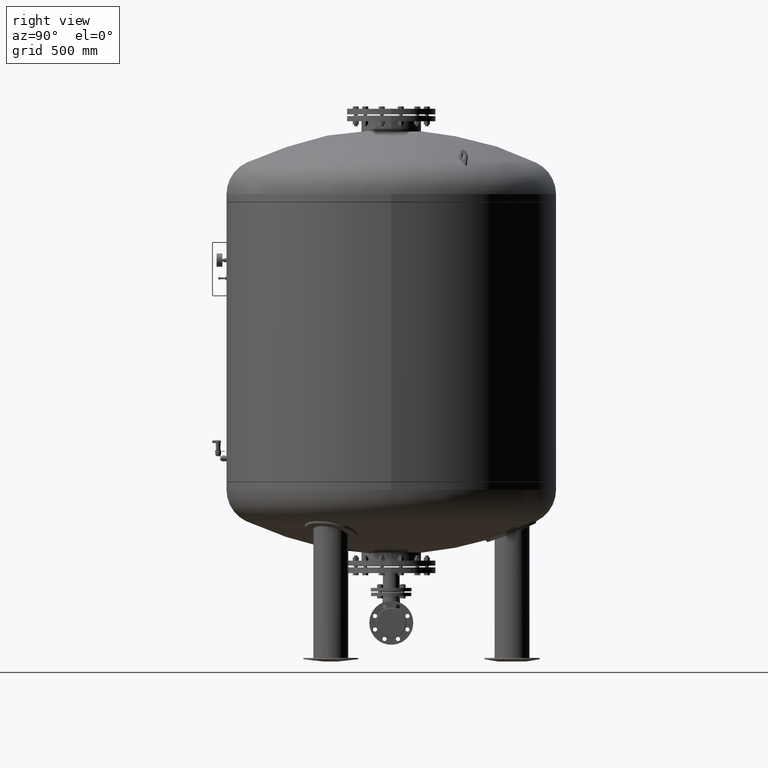
[diagram: clean part render]
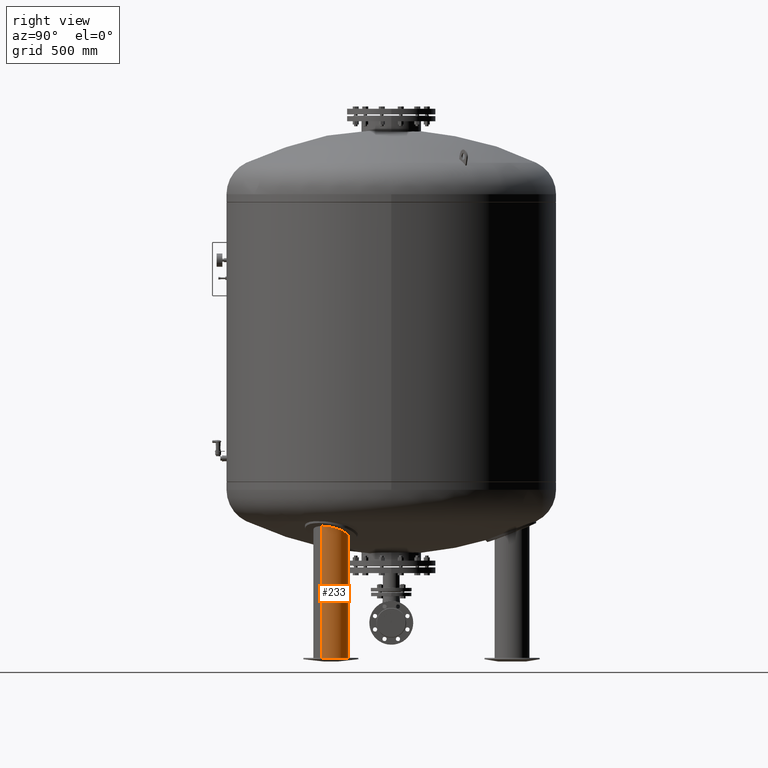
[diagram: same view with one face highlighted and labeled with its STEP entity id]
A machine part, right view. The second image highlights one B-rep face of the part: STEP entity #233.
In plain terms, the highlighted cylindrical surface (edge-blend (fillet) strip) has radius 79.5 mm, axis along (0, 0, -1).
Its self-contained STEP definition (entity closure, byte-faithful):
#167=CARTESIAN_POINT('',(476.313972081441020,-275.000000000000170,15.815585141290533));
#168=DIRECTION('',(9.184851E-017,1.590863E-016,-1.0));
#169=DIRECTION('',(0.866025403784438,-0.500000000000000,0.0));
#170=AXIS2_PLACEMENT_3D('',#167,#168,#169);
#171=CYLINDRICAL_SURFACE('',#170,79.500000000000000);
#172=CARTESIAN_POINT('',(545.162991682303870,-314.750000000000230,11.631170282581067));
#173=VERTEX_POINT('',#172);
#174=CARTESIAN_POINT('',(545.162991682304440,-314.750000000000630,619.974328976416250));
#175=VERTEX_POINT('',#174);
#176=CARTESIAN_POINT('',(545.162991682303870,-314.750000000000230,11.631170282581067));
#177=DIRECTION('',(0.0,0.0,1.0));
#178=VECTOR('',#177,608.343158693835220);
#179=LINE('',#176,#178);
#180=EDGE_CURVE('',#173,#175,#179,.T.);
#181=ORIENTED_EDGE('',*,*,#180,.F.);
#182=CARTESIAN_POINT('',(407.464952480578180,-235.250000000000110,11.631170282581067));
#183=VERTEX_POINT('',#182);
#184=CARTESIAN_POINT('',(476.313972081441020,-275.000000000000170,11.631170282581067));
#185=DIRECTION('',(0.0,0.0,-1.000000000000000));
#186=DIRECTION('',(0.866025403784438,-0.500000000000000,0.0));
#187=AXIS2_PLACEMENT_3D('',#184,#185,#186);
#188=CIRCLE('',#187,79.499999999999986);
#189=EDGE_CURVE('',#183,#173,#188,.T.);
#190=ORIENTED_EDGE('',*,*,#189,.F.);
#191=CARTESIAN_POINT('',(407.464952480578120,-235.250000000000230,557.801446445446690));
#192=VERTEX_POINT('',#191);
#193=CARTESIAN_POINT('',(407.464952480578180,-235.250000000000110,11.631170282581067));
#194=DIRECTION('',(0.0,0.0,1.0));
#195=VECTOR('',#194,546.170276162865660);
#196=LINE('',#193,#195);
#197=EDGE_CURVE('',#183,#192,#196,.T.);
#198=ORIENTED_EDGE('',*,*,#197,.T.);
#199=CARTESIAN_POINT('',(515.420540091885870,-205.783482184926360,588.259208461118310));
#200=VERTEX_POINT('',#199);
#201=CARTESIAN_POINT('',(407.464952480578120,-235.250000000000230,557.801446445446690));
#202=CARTESIAN_POINT('',(411.525284235390980,-228.217299105079010,557.801446445446690));
#203=CARTESIAN_POINT('',(416.633408486805020,-221.858280027431870,558.277369662588170));
#204=CARTESIAN_POINT('',(429.761674803730900,-209.827814395284580,560.328261777430270));
#205=CARTESIAN_POINT('',(437.984686074917250,-204.702974823101670,562.075596332598020));
#206=CARTESIAN_POINT('',(456.175474625067640,-197.436185727423090,566.734659420112730));
#207=CARTESIAN_POINT('',(466.033210859583850,-195.556981402014230,569.661195647944850));
#208=CARTESIAN_POINT('',(486.479592551512550,-195.441118239628850,576.486089468713540));
#209=CARTESIAN_POINT('',(496.909310680895370,-197.506578863575330,580.391859104990320));
#210=CARTESIAN_POINT('',(509.612134853003280,-202.734511174030560,585.699021239809100));
#211=CARTESIAN_POINT('',(512.567447715402980,-204.171516507035650,586.978453284904280));
#212=CARTESIAN_POINT('',(515.420540091885870,-205.783482184926360,588.259208461118310));
#213=B_SPLINE_CURVE_WITH_KNOTS('',3,(#201,#202,#203,#204,#205,#206,#207,#208,#209,#210,#211,#212),.UNSPECIFIED.,.F.,.U.,(4,2,2,2,2,4),(25.946274642103884,28.391196783303212,31.323094720106891,34.426409319311013,37.777807879739491,38.832927063684011),.UNSPECIFIED.);
#214=EDGE_CURVE('',#192,#200,#213,.T.);
#215=ORIENTED_EDGE('',*,*,#214,.T.);
#216=CARTESIAN_POINT('',(515.420540091885870,-205.783482184926360,588.259208461118310));
#217=CARTESIAN_POINT('',(522.189871946945230,-209.608079910030340,591.297966296069830));
#218=CARTESIAN_POINT('',(528.383718873332550,-214.417560257502940,594.344322088061060));
#219=CARTESIAN_POINT('',(541.284952864476960,-227.918131708281010,601.394273940897850));
#220=CARTESIAN_POINT('',(547.177725508011350,-237.298610240627170,605.264897102246320));
#221=CARTESIAN_POINT('',(554.498555675811190,-257.327220450158390,611.749699955350710));
#222=CARTESIAN_POINT('',(556.170213519301680,-267.666267272132130,614.383971692484580));
#223=CARTESIAN_POINT('',(555.498438054978460,-284.487964787748350,617.505471067215810));
#224=CARTESIAN_POINT('',(554.492404166263440,-290.789603093066660,618.415766111970470));
#225=CARTESIAN_POINT('',(550.944328273743280,-303.147603069283830,619.656658887407730));
#226=CARTESIAN_POINT('',(548.407602199616800,-309.130169733241360,619.974328976416020));
#227=CARTESIAN_POINT('',(545.162991682303640,-314.750000000000170,619.974328976416020));
#228=B_SPLINE_CURVE_WITH_KNOTS('',3,(#216,#217,#218,#219,#220,#221,#222,#223,#224,#225,#226,#227),.UNSPECIFIED.,.F.,.U.,(4,2,2,2,2,4),(38.832927063684011,41.336334230459492,44.806614551580793,48.013896662752792,49.941938919734973,51.888705230122902),.UNSPECIFIED.);
#229=EDGE_CURVE('',#200,#175,#228,.T.);
#230=ORIENTED_EDGE('',*,*,#229,.T.);
#231=EDGE_LOOP('',(#181,#190,#198,#215,#230));
#232=FACE_OUTER_BOUND('',#231,.T.);
#233=ADVANCED_FACE('',(#232),#171,.T.);